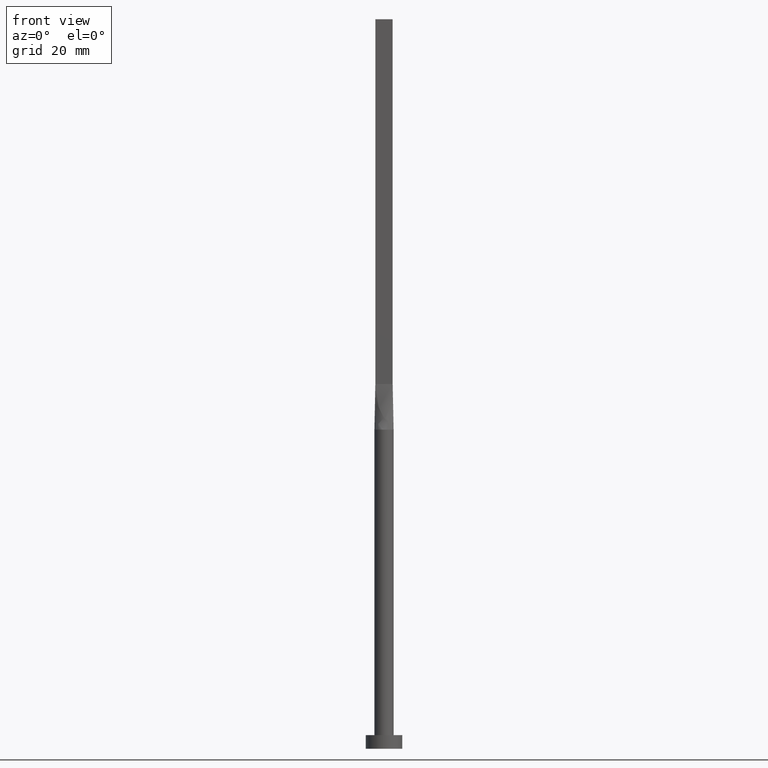
[diagram: clean part render]
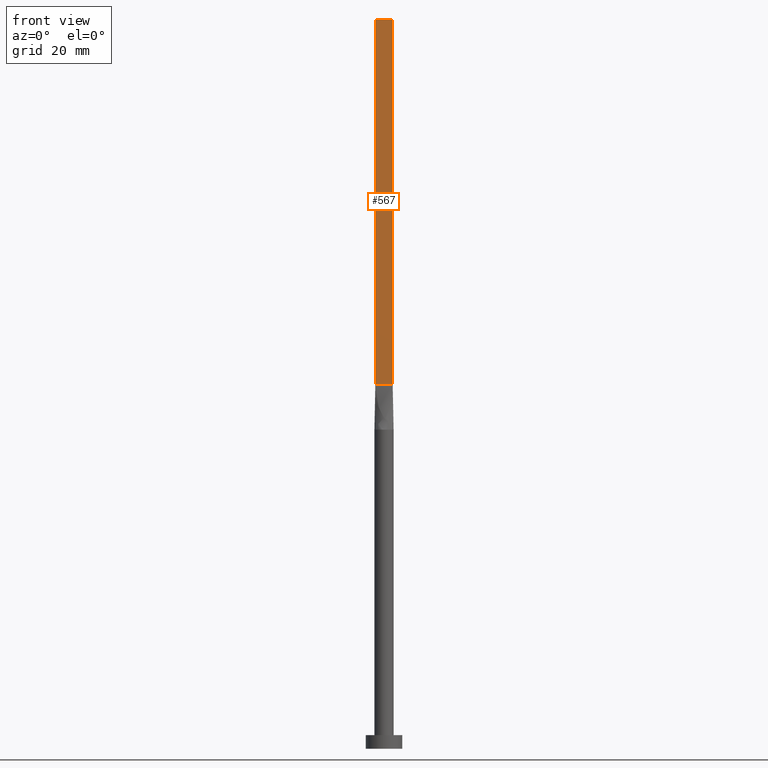
[diagram: same view with one face highlighted and labeled with its STEP entity id]
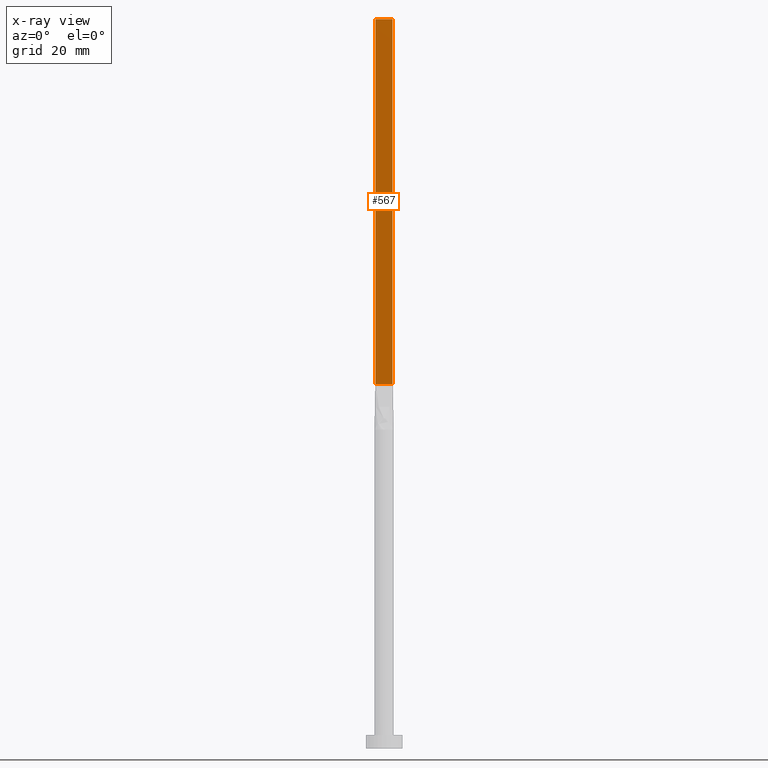
[diagram: x-ray of the same camera — body ghosted, the highlighted face saturated]
A machine part, front view. The second image highlights one B-rep face of the part: STEP entity #567.
The next image is the same camera in x-ray: the body ghosted, the highlighted face saturated — about 0% of this face is hidden behind the body in this view.
In plain terms, the highlighted planar face has unit normal (0, 1, -0).
Its self-contained STEP definition (entity closure, byte-faithful):
#1 = CARTESIAN_POINT ( 'NONE',  ( 1.899999999999999023, -0.4999999999999997780, 160.0000000000000000 ) ) ;
#5 = LINE ( 'NONE', #10, #37 ) ;
#10 = CARTESIAN_POINT ( 'NONE',  ( 1.899999999999999023, -0.4999999999999997780, 160.0000000000000000 ) ) ;
#11 = CARTESIAN_POINT ( 'NONE',  ( -1.899999999999999911, -0.4999999999999995559, 80.00000000000000000 ) ) ;
#25 = VECTOR ( 'NONE', #262, 1000.000000000000000 ) ;
#37 = VECTOR ( 'NONE', #264, 1000.000000000000000 ) ;
#51 = VERTEX_POINT ( 'NONE', #11 ) ;
#57 = LINE ( 'NONE', #456, #227 ) ;
#68 = DIRECTION ( 'NONE',  ( -1.000000000000000000, 5.706327223607918787E-17, 0.000000000000000000 ) ) ;
#72 = DIRECTION ( 'NONE',  ( 5.706327223607918787E-17, 1.000000000000000000, -0.000000000000000000 ) ) ;
#106 = DIRECTION ( 'NONE',  ( 1.000000000000000000, -5.706327223607918787E-17, 0.000000000000000000 ) ) ;
#155 = CARTESIAN_POINT ( 'NONE',  ( -1.899999999999999911, -0.4999999999999995559, 160.0000000000000000 ) ) ;
#168 = EDGE_CURVE ( 'NONE', #51, #551, #187, .T. ) ;
#187 = LINE ( 'NONE', #291, #290 ) ;
#227 = VECTOR ( 'NONE', #544, 1000.000000000000000 ) ;
#233 = CARTESIAN_POINT ( 'NONE',  ( -1.899999999999999911, -0.4999999999999995559, 160.0000000000000000 ) ) ;
#258 = EDGE_CURVE ( 'NONE', #481, #51, #57, .T. ) ;
#262 = DIRECTION ( 'NONE',  ( 1.000000000000000000, -5.706327223607920020E-17, 0.000000000000000000 ) ) ;
#264 = DIRECTION ( 'NONE',  ( -0.000000000000000000, -0.000000000000000000, -1.000000000000000000 ) ) ;
#271 = ORIENTED_EDGE ( 'NONE', *, *, #476, .F. ) ;
#290 = VECTOR ( 'NONE', #106, 1000.000000000000000 ) ;
#291 = CARTESIAN_POINT ( 'NONE',  ( -1.899999999999999911, -0.4999999999999995559, 80.00000000000000000 ) ) ;
#325 = ORIENTED_EDGE ( 'NONE', *, *, #421, .F. ) ;
#378 = ORIENTED_EDGE ( 'NONE', *, *, #168, .T. ) ;
#402 = LINE ( 'NONE', #538, #25 ) ;
#421 = EDGE_CURVE ( 'NONE', #481, #450, #402, .T. ) ;
#440 = ORIENTED_EDGE ( 'NONE', *, *, #258, .T. ) ;
#441 = FACE_OUTER_BOUND ( 'NONE', #531, .T. ) ;
#450 = VERTEX_POINT ( 'NONE', #1 ) ;
#456 = CARTESIAN_POINT ( 'NONE',  ( -1.899999999999999911, -0.4999999999999995559, 160.0000000000000000 ) ) ;
#465 = CARTESIAN_POINT ( 'NONE',  ( 1.899999999999999023, -0.4999999999999997780, 80.00000000000000000 ) ) ;
#476 = EDGE_CURVE ( 'NONE', #450, #551, #5, .T. ) ;
#481 = VERTEX_POINT ( 'NONE', #233 ) ;
#526 = PLANE ( 'NONE',  #568 ) ;
#531 = EDGE_LOOP ( 'NONE', ( #378, #271, #325, #440 ) ) ;
#538 = CARTESIAN_POINT ( 'NONE',  ( -1.899999999999999911, -0.4999999999999995559, 160.0000000000000000 ) ) ;
#544 = DIRECTION ( 'NONE',  ( -0.000000000000000000, -0.000000000000000000, -1.000000000000000000 ) ) ;
#551 = VERTEX_POINT ( 'NONE', #465 ) ;
#567 = ADVANCED_FACE ( 'NONE', ( #441 ), #526, .F. ) ;
#568 = AXIS2_PLACEMENT_3D ( 'NONE', #155, #72, #68 ) ;